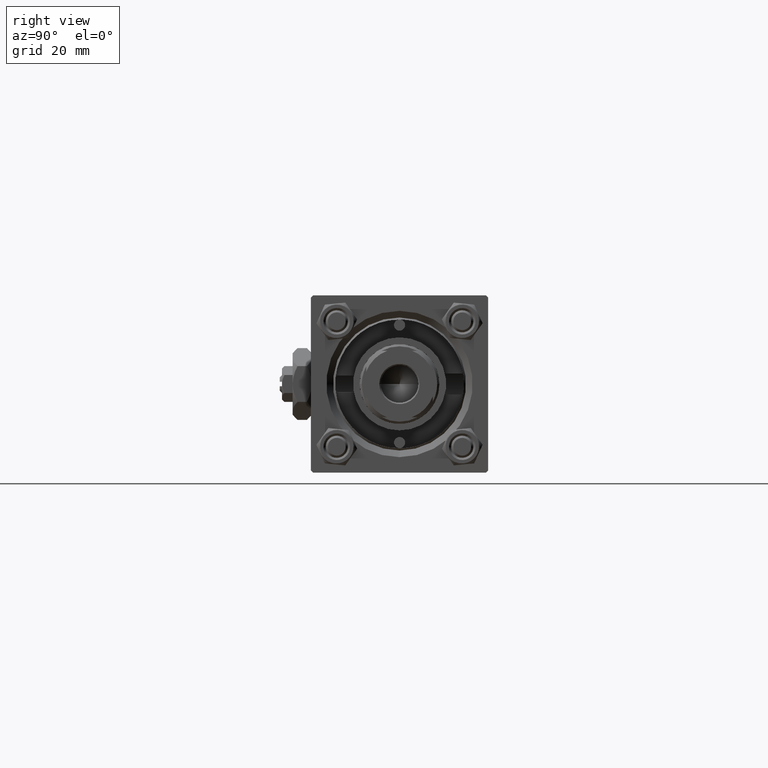
[diagram: clean part render]
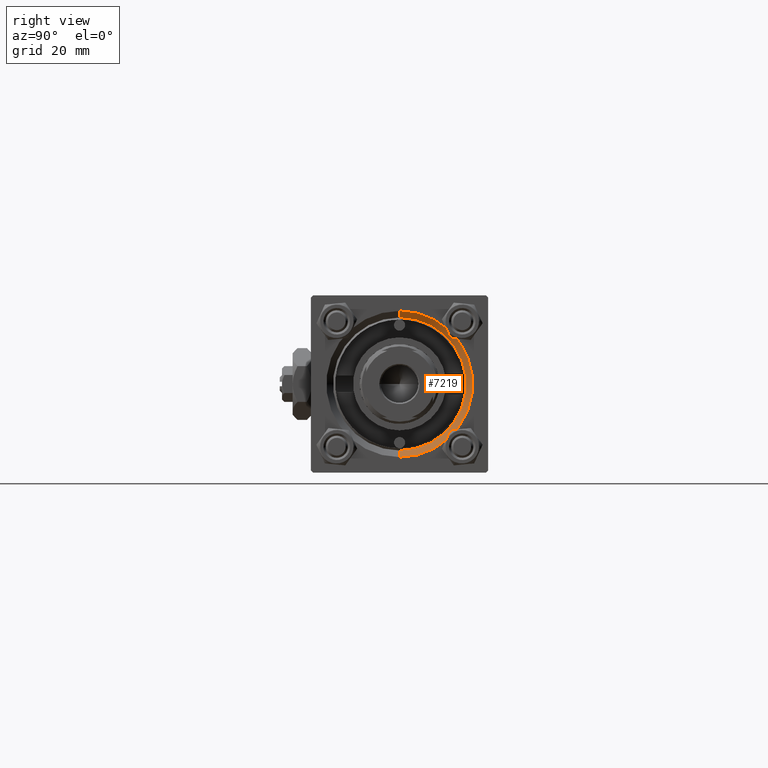
[diagram: same view with one face highlighted and labeled with its STEP entity id]
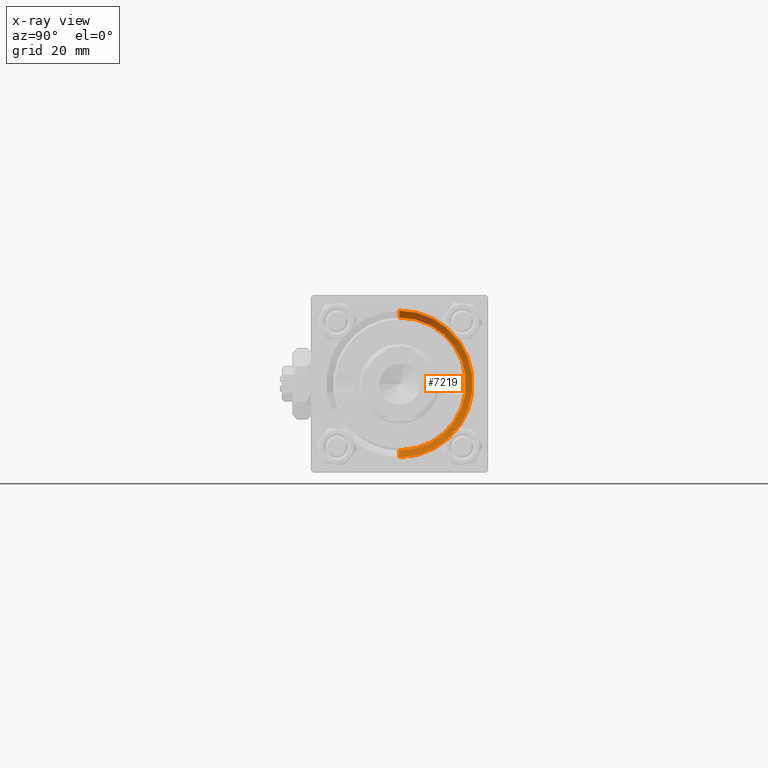
[diagram: x-ray of the same camera — body ghosted, the highlighted face saturated]
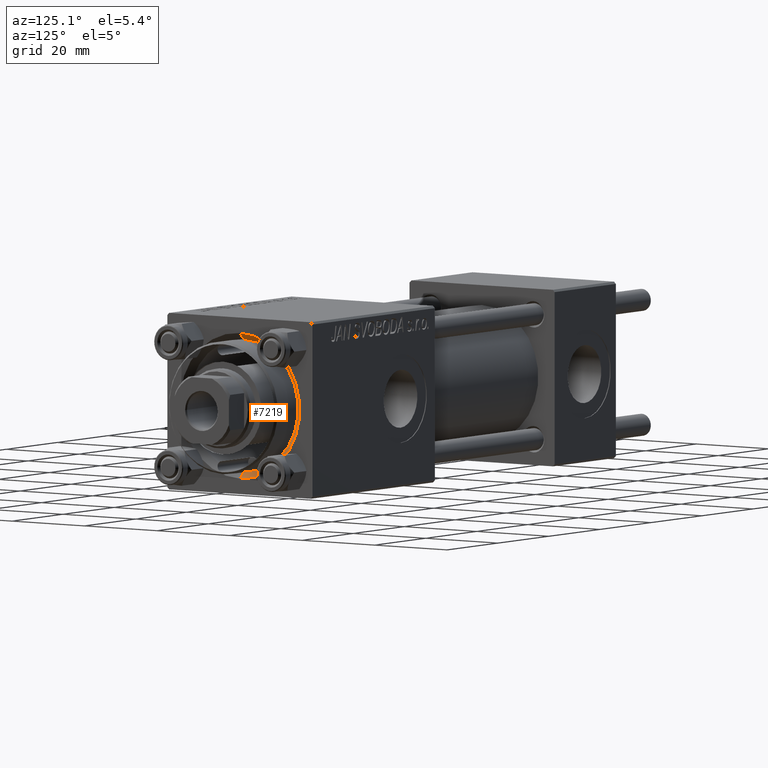
[diagram: same view with one face highlighted and labeled with its STEP entity id]
A machine part, right view. The second image highlights one B-rep face of the part: STEP entity #7219.
The next image is the same camera in x-ray: the body ghosted, the highlighted face saturated — about 0% of this face is hidden behind the body in this view.
A second angle (auxiliary view) of the same face is appended — the face is thin or edge-on in the first view.
In plain terms, the highlighted conical surface has half-angle 45 deg.
Its self-contained STEP definition (entity closure, byte-faithful):
#454 = EDGE_CURVE ( 'NONE', #7056, #14634, #23228, .T. ) ;
#4239 = AXIS2_PLACEMENT_3D ( 'NONE', #42604, #37379, #9829 ) ;
#5289 = LINE ( 'NONE', #5548, #14348 ) ;
#5548 = CARTESIAN_POINT ( 'NONE',  ( 117.5000000000000000, 1.836970198721029589E-15, 15.00000000000000000 ) ) ;
#5637 = FACE_OUTER_BOUND ( 'NONE', #43032, .T. ) ;
#7056 = VERTEX_POINT ( 'NONE', #33195 ) ;
#7219 = ADVANCED_FACE ( 'NONE', ( #5637 ), #41917, .F. ) ;
#9829 = DIRECTION ( 'NONE',  ( 0.000000000000000000, 0.000000000000000000, -1.000000000000000000 ) ) ;
#12901 = EDGE_CURVE ( 'NONE', #7056, #19366, #41162, .T. ) ;
#12994 = EDGE_CURVE ( 'NONE', #19366, #37325, #5289, .T. ) ;
#14348 = VECTOR ( 'NONE', #21804, 1000.000000000000114 ) ;
#14634 = VERTEX_POINT ( 'NONE', #44854 ) ;
#15380 = EDGE_CURVE ( 'NONE', #37325, #14634, #24485, .T. ) ;
#15534 = ORIENTED_EDGE ( 'NONE', *, *, #12901, .F. ) ;
#18430 = CARTESIAN_POINT ( 'NONE',  ( 119.0000000000000142, 2.020667218593134678E-15, 16.50000000000001421 ) ) ;
#19366 = VERTEX_POINT ( 'NONE', #48360 ) ;
#21550 = DIRECTION ( 'NONE',  ( 0.000000000000000000, 0.000000000000000000, 1.000000000000000000 ) ) ;
#21804 = DIRECTION ( 'NONE',  ( 0.7071067811865474617, 8.659560562354932858E-17, 0.7071067811865474617 ) ) ;
#22064 = DIRECTION ( 'NONE',  ( 1.000000000000000000, 0.000000000000000000, 0.000000000000000000 ) ) ;
#22394 = VECTOR ( 'NONE', #35815, 1000.000000000000114 ) ;
#23228 = LINE ( 'NONE', #27677, #22394 ) ;
#24485 = CIRCLE ( 'NONE', #45396, 16.50000000000001421 ) ;
#26004 = ORIENTED_EDGE ( 'NONE', *, *, #15380, .F. ) ;
#27677 = CARTESIAN_POINT ( 'NONE',  ( 117.5000000000000000, 0.000000000000000000, -15.00000000000000000 ) ) ;
#29091 = ORIENTED_EDGE ( 'NONE', *, *, #454, .T. ) ;
#33195 = CARTESIAN_POINT ( 'NONE',  ( 117.5000000000000000, 0.000000000000000000, -15.00000000000000000 ) ) ;
#35815 = DIRECTION ( 'NONE',  ( 0.7071067811865474617, 0.000000000000000000, -0.7071067811865474617 ) ) ;
#36730 = CARTESIAN_POINT ( 'NONE',  ( 119.0000000000000142, 0.000000000000000000, 0.000000000000000000 ) ) ;
#37325 = VERTEX_POINT ( 'NONE', #18430 ) ;
#37379 = DIRECTION ( 'NONE',  ( 1.000000000000000000, 0.000000000000000000, 0.000000000000000000 ) ) ;
#37910 = AXIS2_PLACEMENT_3D ( 'NONE', #41733, #22064, #21550 ) ;
#40670 = DIRECTION ( 'NONE',  ( 0.000000000000000000, 0.000000000000000000, 1.000000000000000000 ) ) ;
#41162 = CIRCLE ( 'NONE', #37910, 15.00000000000000000 ) ;
#41733 = CARTESIAN_POINT ( 'NONE',  ( 117.5000000000000000, 0.000000000000000000, 0.000000000000000000 ) ) ;
#41917 = CONICAL_SURFACE ( 'NONE', #4239, 15.00000000000000000, 0.7853981633974482790 ) ;
#42604 = CARTESIAN_POINT ( 'NONE',  ( 117.5000000000000000, 0.000000000000000000, 0.000000000000000000 ) ) ;
#43032 = EDGE_LOOP ( 'NONE', ( #48488, #15534, #29091, #26004 ) ) ;
#44854 = CARTESIAN_POINT ( 'NONE',  ( 119.0000000000000142, 0.000000000000000000, -16.50000000000001421 ) ) ;
#45396 = AXIS2_PLACEMENT_3D ( 'NONE', #36730, #48822, #40670 ) ;
#48360 = CARTESIAN_POINT ( 'NONE',  ( 117.5000000000000000, 1.836970198721029589E-15, 15.00000000000000000 ) ) ;
#48488 = ORIENTED_EDGE ( 'NONE', *, *, #12994, .F. ) ;
#48822 = DIRECTION ( 'NONE',  ( -1.000000000000000000, -0.000000000000000000, -0.000000000000000000 ) ) ;